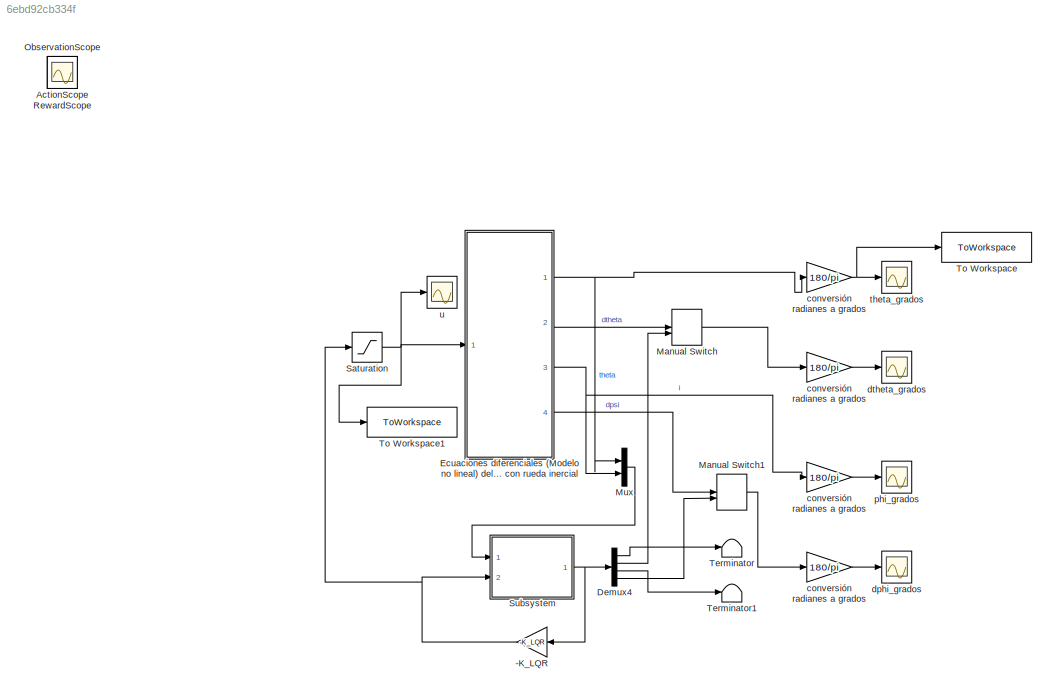
MODEL slx_6ebd92cb334f
KIND model
CONFIG AbsTol = auto
CONFIG EnableMultiTasking = off
CONFIG FixedStep = 0.01
CONFIG MaxStep = auto
CONFIG MinStep = auto
CONFIG RelTol = 1e-3
CONFIG SampleTimeConstraint = Unconstrained
CONFIG SolverName = VariableStepAuto
CONFIG StartTime = 0.0
CONFIG StopTime = 5
WORKSPACE source: MATLAB code (in-file)
WORKSPACE mCart = 1
WORKSPACE mPend = 1
WORKSPACE g = 9.81
WORKSPACE L = 0.5
WORKSPACE theta0 = 180
WORKSPACE Kd = 10
BLOCK [Gain] -K_LQR
  Gain = -K_LQR
  Multiplication = Matrix(K*u)
BLOCK [Scope] ActionScope
  Floating = off
  IOType = viewer
  NumInputPorts = 1
  Ports = []
  ScopeSpecificationString = Simulink.scopes.TimeScopeBlockCfg('CurrentConfiguration', extmgr.ConfigurationSet(extmgr.Configuration('Core','General UI',true),extmgr.Configuration('Core','Source UI',true),extmgr.Configuration('Sources','WiredSimulink',true,'DataLoggingVariableName','ScopeData1'),extmgr.Configuration('Visuals','Time Domain',true,'SerializedDisplays',{struct('MinYLimReal','-16','MaxYLimReal','16','YLabelReal',''...<+1415ch>
BLOCK [Demux] Demux4
  Ports = [1, 4]
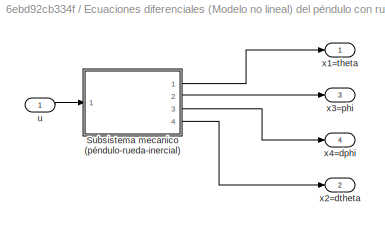
BLOCK [SubSystem] Ecuaciones diferenciales (Modelo no lineal) del péndulo con rueda inercial
  Ports = [1, 4]
  RequestExecContextInheritance = off
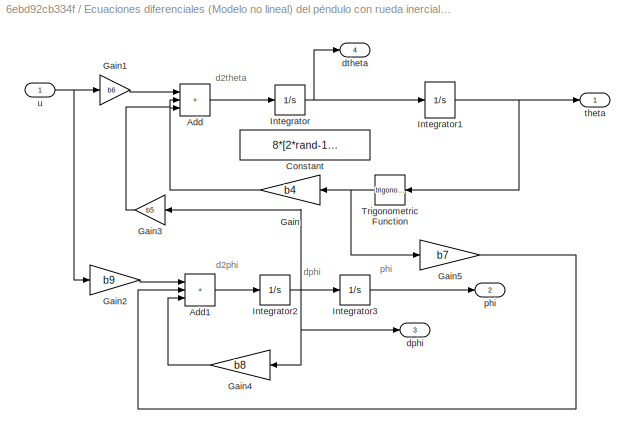
BLOCK [SubSystem] Ecuaciones diferenciales (Modelo no lineal) del péndulo con rueda inercial/Subsistema mecanico (péndulo-rueda-inercial)
  Ports = [1, 4]
  RequestExecContextInheritance = off
BLOCK [Sum] Ecuaciones diferenciales (Modelo no lineal) del péndulo con rueda inercial/Subsistema mecanico (péndulo-rueda-inercial)/Add
  IconShape = rectangular
  Inputs = +++
  Ports = [3, 1]
BLOCK [Sum] Ecuaciones diferenciales (Modelo no lineal) del péndulo con rueda inercial/Subsistema mecanico (péndulo-rueda-inercial)/Add1
  IconShape = rectangular
  Inputs = +++
  Ports = [3, 1]
BLOCK [Constant] Ecuaciones diferenciales (Modelo no lineal) del péndulo con rueda inercial/Subsistema mecanico (péndulo-rueda-inercial)/Constant
  Value = 8*[2*rand-1]*pi/180
BLOCK [Gain] Ecuaciones diferenciales (Modelo no lineal) del péndulo con rueda inercial/Subsistema mecanico (péndulo-rueda-inercial)/Gain
  Gain = b4
BLOCK [Gain] Ecuaciones diferenciales (Modelo no lineal) del péndulo con rueda inercial/Subsistema mecanico (péndulo-rueda-inercial)/Gain1
  Gain = b6
BLOCK [Gain] Ecuaciones diferenciales (Modelo no lineal) del péndulo con rueda inercial/Subsistema mecanico (péndulo-rueda-inercial)/Gain2
  Gain = b9
BLOCK [Gain] Ecuaciones diferenciales (Modelo no lineal) del péndulo con rueda inercial/Subsistema mecanico (péndulo-rueda-inercial)/Gain3
  Gain = b5
BLOCK [Gain] Ecuaciones diferenciales (Modelo no lineal) del péndulo con rueda inercial/Subsistema mecanico (péndulo-rueda-inercial)/Gain4
  Gain = b8
BLOCK [Gain] Ecuaciones diferenciales (Modelo no lineal) del péndulo con rueda inercial/Subsistema mecanico (péndulo-rueda-inercial)/Gain5
  Gain = b7
BLOCK [Integrator] Ecuaciones diferenciales (Modelo no lineal) del péndulo con rueda inercial/Subsistema mecanico (péndulo-rueda-inercial)/Integrator
  Ports = [1, 1]
BLOCK [Integrator] Ecuaciones diferenciales (Modelo no lineal) del péndulo con rueda inercial/Subsistema mecanico (péndulo-rueda-inercial)/Integrator1
  InitialCondition = 6*pi/180
  Ports = [1, 1]
BLOCK [Integrator] Ecuaciones diferenciales (Modelo no lineal) del péndulo con rueda inercial/Subsistema mecanico (péndulo-rueda-inercial)/Integrator2
  Ports = [1, 1]
BLOCK [Integrator] Ecuaciones diferenciales (Modelo no lineal) del péndulo con rueda inercial/Subsistema mecanico (péndulo-rueda-inercial)/Integrator3
  Ports = [1, 1]
BLOCK [Trigonometry] Ecuaciones diferenciales (Modelo no lineal) del péndulo con rueda inercial/Subsistema mecanico (péndulo-rueda-inercial)/Trigonometric Function
  Ports = [1, 1]
BLOCK [Outport] Ecuaciones diferenciales (Modelo no lineal) del péndulo con rueda inercial/Subsistema mecanico (péndulo-rueda-inercial)/dphi
  Port = 3
BLOCK [Outport] Ecuaciones diferenciales (Modelo no lineal) del péndulo con rueda inercial/Subsistema mecanico (péndulo-rueda-inercial)/dtheta
  Port = 4
BLOCK [Outport] Ecuaciones diferenciales (Modelo no lineal) del péndulo con rueda inercial/Subsistema mecanico (péndulo-rueda-inercial)/phi
  Port = 2
BLOCK [Outport] Ecuaciones diferenciales (Modelo no lineal) del péndulo con rueda inercial/Subsistema mecanico (péndulo-rueda-inercial)/theta
BLOCK [Inport] Ecuaciones diferenciales (Modelo no lineal) del péndulo con rueda inercial/Subsistema mecanico (péndulo-rueda-inercial)/u
BLOCK [Inport] Ecuaciones diferenciales (Modelo no lineal) del péndulo con rueda inercial/u
BLOCK [Outport] Ecuaciones diferenciales (Modelo no lineal) del péndulo con rueda inercial/x1=theta
BLOCK [Outport] Ecuaciones diferenciales (Modelo no lineal) del péndulo con rueda inercial/x2=dtheta
  Port = 2
BLOCK [Outport] Ecuaciones diferenciales (Modelo no lineal) del péndulo con rueda inercial/x3=phi
  Port = 3
BLOCK [Outport] Ecuaciones diferenciales (Modelo no lineal) del péndulo con rueda inercial/x4=dphi
  Port = 4
BLOCK [ManualSwitch] Manual Switch
BLOCK [ManualSwitch] Manual Switch1
BLOCK [Mux] Mux
  DisplayOption = bar
  Inputs = 2
  Ports = [2, 1]
BLOCK [Scope] ObservationScope
  Floating = off
  IOType = viewer
  NumInputPorts = 1
  Ports = []
  ScopeSpecificationString = Simulink.scopes.TimeScopeBlockCfg('CurrentConfiguration', extmgr.ConfigurationSet(extmgr.Configuration('Core','General UI',true),extmgr.Configuration('Core','Source UI',true),extmgr.Configuration('Sources','WiredSimulink',true),extmgr.Configuration('Visuals','Time Domain',true,'SerializedDisplays',{struct('MinYLimReal','-0.2486','MaxYLimReal','0.02762','YLabelReal','','MinYLimMag','0.00000','MaxYL...<+3376ch>
BLOCK [Scope] RewardScope
  Floating = off
  IOType = viewer
  NumInputPorts = 1
  Ports = []
  ScopeSpecificationString = Simulink.scopes.TimeScopeBlockCfg('CurrentConfiguration', extmgr.ConfigurationSet(extmgr.Configuration('Core','General UI',true),extmgr.Configuration('Core','Source UI',true),extmgr.Configuration('Sources','WiredSimulink',true,'DataLoggingVariableName','ScopeData2'),extmgr.Configuration('Visuals','Time Domain',true,'SerializedDisplays',{struct('MinYLimReal','-0.70946','MaxYLimReal','-0.42421','YLa...<+1394ch>
BLOCK [Saturate] Saturation
  LowerLimit = -12
  UpperLimit = 12
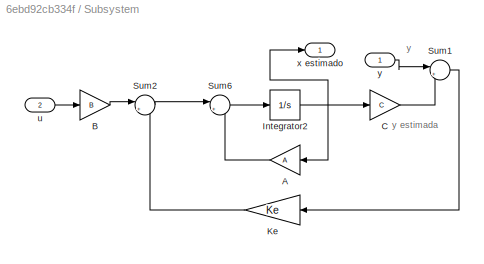
BLOCK [SubSystem] Subsystem
  Ports = [2, 1]
  RequestExecContextInheritance = off
BLOCK [Gain] Subsystem/A
  Gain = A
  Multiplication = Matrix(K*u)
BLOCK [Gain] Subsystem/B
  Gain = B
  Multiplication = Matrix(K*u)
BLOCK [Gain] Subsystem/C
  Gain = C
  Multiplication = Matrix(K*u)
BLOCK [Integrator] Subsystem/Integrator2
  Ports = [1, 1]
BLOCK [Gain] Subsystem/Ke
  Gain = Ke
  Multiplication = Matrix(K*u)
BLOCK [Sum] Subsystem/Sum1
  Inputs = |+-
  NameLocation = top
  Ports = [2, 1]
BLOCK [Sum] Subsystem/Sum2
  Inputs = |++
  Ports = [2, 1]
BLOCK [Sum] Subsystem/Sum6
  Inputs = |++
  Ports = [2, 1]
BLOCK [Inport] Subsystem/u
  Port = 2
BLOCK [Outport] Subsystem/x estimado
BLOCK [Inport] Subsystem/y
BLOCK [Terminator] Terminator
BLOCK [Terminator] Terminator1
BLOCK [ToWorkspace] To Workspace
  FixptAsFi = on
  MaxDataPoints = inf
  Ports = [1]
  SampleTime = 0.01
  Save2DSignal = 2-D array (concatenate along first dimension)
  VariableName = theta_lqr
BLOCK [ToWorkspace] To Workspace1
  FixptAsFi = on
  MaxDataPoints = inf
  Ports = [1]
  SampleTime = 0.01
  Save2DSignal = 2-D array (concatenate along first dimension)
  VariableName = u_lqr
BLOCK [Gain] conversión radianes a grados
  Gain = 180/pi
BLOCK [Gain] conversión radianes a grados 
  Gain = 180/pi
BLOCK [Gain] conversión radianes a grados  
  Gain = 180/pi
BLOCK [Gain] conversión radianes a grados   
  Gain = 180/pi
BLOCK [Scope] dphi_grados
  Floating = off
  NumInputPorts = 1
  Ports = [1]
  ScopeSpecificationString = Simulink.scopes.TimeScopeBlockCfg('CurrentConfiguration', extmgr.ConfigurationSet(extmgr.Configuration('Core','General UI',true),extmgr.Configuration('Core','Source UI',true),extmgr.Configuration('Sources','WiredSimulink',true,'DataLoggingVariableName','ScopeData2'),extmgr.Configuration('Visuals','Time Domain',true,'SerializedDisplays',{struct('MinYLimReal','-230.56866','MaxYLimReal','278.47078','...<+1461ch>
BLOCK [Scope] dtheta_grados
  Floating = off
  NumInputPorts = 1
  Ports = [1]
  ScopeSpecificationString = Simulink.scopes.TimeScopeBlockCfg('CurrentConfiguration', extmgr.ConfigurationSet(extmgr.Configuration('Core','General UI',true),extmgr.Configuration('Core','Source UI',true),extmgr.Configuration('Sources','WiredSimulink',true,'DataLoggingVariableName','ScopeData1'),extmgr.Configuration('Visuals','Time Domain',true,'SerializedDisplays',{struct('MinYLimReal','-1.00000','MaxYLimReal','1.00000','YLab...<+1460ch>
BLOCK [Scope] phi_grados
  Floating = off
  NumInputPorts = 1
  Ports = [1]
  ScopeSpecificationString = Simulink.scopes.TimeScopeBlockCfg('CurrentConfiguration', extmgr.ConfigurationSet(extmgr.Configuration('Core','General UI',true),extmgr.Configuration('Core','Source UI',true),extmgr.Configuration('Sources','WiredSimulink',true,'DataLoggingVariableName','ScopeData3'),extmgr.Configuration('Visuals','Time Domain',true,'SerializedDisplays',{struct('MinYLimReal','-75.67877','MaxYLimReal','126.16693','Y...<+1469ch>
BLOCK [Scope] theta_grados
  Floating = off
  NumInputPorts = 1
  Ports = [1]
  ScopeSpecificationString = Simulink.scopes.TimeScopeBlockCfg('CurrentConfiguration', extmgr.ConfigurationSet(extmgr.Configuration('Core','General UI',true),extmgr.Configuration('Core','Source UI',true),extmgr.Configuration('Sources','WiredSimulink',true,'DataLoggingVariableName','ScopeData4'),extmgr.Configuration('Visuals','Time Domain',true,'SerializedDisplays',{struct('MinYLimReal','-4.72657','MaxYLimReal','2.53909','YLab...<+1458ch>
BLOCK [Scope] u
  Floating = off
  NumInputPorts = 1
  Ports = [1]
  ScopeSpecificationString = Simulink.scopes.TimeScopeBlockCfg('CurrentConfiguration', extmgr.ConfigurationSet(extmgr.Configuration('Core','General UI',true),extmgr.Configuration('Core','Source UI',true),extmgr.Configuration('Sources','WiredSimulink',true,'DataLoggingVariableName','ScopeData5'),extmgr.Configuration('Visuals','Time Domain',true,'SerializedDisplays',{struct('MinYLimReal','-14.55155','MaxYLimReal','10.96393','YL...<+1446ch>
ANNOTATION Ecuaciones diferenciales (Modelo no lineal) del péndulo con rueda inercial/Subsistema mecanico (péndulo-rueda-inercial): d2phi
ANNOTATION Ecuaciones diferenciales (Modelo no lineal) del péndulo con rueda inercial/Subsistema mecanico (péndulo-rueda-inercial): d2theta
ANNOTATION Ecuaciones diferenciales (Modelo no lineal) del péndulo con rueda inercial/Subsistema mecanico (péndulo-rueda-inercial): dphi
ANNOTATION Ecuaciones diferenciales (Modelo no lineal) del péndulo con rueda inercial/Subsistema mecanico (péndulo-rueda-inercial): phi
ANNOTATION Subsystem: y
ANNOTATION Subsystem: y estimada
NET -K_LQR:1 -> Saturation:1, Subsystem:2
LINE Demux4:1 -> Terminator:1
LINE Demux4:2 -> Manual Switch:2
LINE Demux4:3 -> Terminator1:1
LINE Demux4:4 -> Manual Switch1:2
LINE Ecuaciones diferenciales (Modelo no lineal) del péndulo con rueda inercial/Subsistema mecanico (péndulo-rueda-inercial)/Add1:1 -> Ecuaciones diferenciales (Modelo no lineal) del péndulo con rueda inercial/Subsistema mecanico (péndulo-rueda-inercial)/Integrator2:1
LINE Ecuaciones diferenciales (Modelo no lineal) del péndulo con rueda inercial/Subsistema mecanico (péndulo-rueda-inercial)/Add:1 -> Ecuaciones diferenciales (Modelo no lineal) del péndulo con rueda inercial/Subsistema mecanico (péndulo-rueda-inercial)/Integrator:1
LINE Ecuaciones diferenciales (Modelo no lineal) del péndulo con rueda inercial/Subsistema mecanico (péndulo-rueda-inercial)/Gain1:1 -> Ecuaciones diferenciales (Modelo no lineal) del péndulo con rueda inercial/Subsistema mecanico (péndulo-rueda-inercial)/Add:1
LINE Ecuaciones diferenciales (Modelo no lineal) del péndulo con rueda inercial/Subsistema mecanico (péndulo-rueda-inercial)/Gain2:1 -> Ecuaciones diferenciales (Modelo no lineal) del péndulo con rueda inercial/Subsistema mecanico (péndulo-rueda-inercial)/Add1:1
LINE Ecuaciones diferenciales (Modelo no lineal) del péndulo con rueda inercial/Subsistema mecanico (péndulo-rueda-inercial)/Gain3:1 -> Ecuaciones diferenciales (Modelo no lineal) del péndulo con rueda inercial/Subsistema mecanico (péndulo-rueda-inercial)/Add:2
LINE Ecuaciones diferenciales (Modelo no lineal) del péndulo con rueda inercial/Subsistema mecanico (péndulo-rueda-inercial)/Gain4:1 -> Ecuaciones diferenciales (Modelo no lineal) del péndulo con rueda inercial/Subsistema mecanico (péndulo-rueda-inercial)/Add1:3
LINE Ecuaciones diferenciales (Modelo no lineal) del péndulo con rueda inercial/Subsistema mecanico (péndulo-rueda-inercial)/Gain5:1 -> Ecuaciones diferenciales (Modelo no lineal) del péndulo con rueda inercial/Subsistema mecanico (péndulo-rueda-inercial)/Add1:2
LINE Ecuaciones diferenciales (Modelo no lineal) del péndulo con rueda inercial/Subsistema mecanico (péndulo-rueda-inercial)/Gain:1 -> Ecuaciones diferenciales (Modelo no lineal) del péndulo con rueda inercial/Subsistema mecanico (péndulo-rueda-inercial)/Add:3
NET Ecuaciones diferenciales (Modelo no lineal) del péndulo con rueda inercial/Subsistema mecanico (péndulo-rueda-inercial)/Integrator1:1 -> Ecuaciones diferenciales (Modelo no lineal) del péndulo con rueda inercial/Subsistema mecanico (péndulo-rueda-inercial)/Trigonometric Function:1, Ecuaciones diferenciales (Modelo no lineal) del péndulo con rueda inercial/Subsistema mecanico (péndulo-rueda-inercial)/theta:1
NET Ecuaciones diferenciales (Modelo no lineal) del péndulo con rueda inercial/Subsistema mecanico (péndulo-rueda-inercial)/Integrator2:1 -> Ecuaciones diferenciales (Modelo no lineal) del péndulo con rueda inercial/Subsistema mecanico (péndulo-rueda-inercial)/Gain3:1, Ecuaciones diferenciales (Modelo no lineal) del péndulo con rueda inercial/Subsistema mecanico (péndulo-rueda-inercial)/Gain4:1, Ecuaciones diferenciales (Modelo no lineal) del péndulo con rueda inercial/Subsistema mecanico (péndulo-rueda-inercial)/Integrator3:1, Ecuaciones diferenciales (Modelo no lineal) del péndulo con rueda inercial/Subsistema mecanico (péndulo-rueda-inercial)/dphi:1
LINE Ecuaciones diferenciales (Modelo no lineal) del péndulo con rueda inercial/Subsistema mecanico (péndulo-rueda-inercial)/Integrator3:1 -> Ecuaciones diferenciales (Modelo no lineal) del péndulo con rueda inercial/Subsistema mecanico (péndulo-rueda-inercial)/phi:1
NET Ecuaciones diferenciales (Modelo no lineal) del péndulo con rueda inercial/Subsistema mecanico (péndulo-rueda-inercial)/Integrator:1 -> Ecuaciones diferenciales (Modelo no lineal) del péndulo con rueda inercial/Subsistema mecanico (péndulo-rueda-inercial)/Integrator1:1, Ecuaciones diferenciales (Modelo no lineal) del péndulo con rueda inercial/Subsistema mecanico (péndulo-rueda-inercial)/dtheta:1
NET Ecuaciones diferenciales (Modelo no lineal) del péndulo con rueda inercial/Subsistema mecanico (péndulo-rueda-inercial)/Trigonometric Function:1 -> Ecuaciones diferenciales (Modelo no lineal) del péndulo con rueda inercial/Subsistema mecanico (péndulo-rueda-inercial)/Gain5:1, Ecuaciones diferenciales (Modelo no lineal) del péndulo con rueda inercial/Subsistema mecanico (péndulo-rueda-inercial)/Gain:1
NET Ecuaciones diferenciales (Modelo no lineal) del péndulo con rueda inercial/Subsistema mecanico (péndulo-rueda-inercial)/u:1 -> Ecuaciones diferenciales (Modelo no lineal) del péndulo con rueda inercial/Subsistema mecanico (péndulo-rueda-inercial)/Gain1:1, Ecuaciones diferenciales (Modelo no lineal) del péndulo con rueda inercial/Subsistema mecanico (péndulo-rueda-inercial)/Gain2:1
LINE Ecuaciones diferenciales (Modelo no lineal) del péndulo con rueda inercial/Subsistema mecanico (péndulo-rueda-inercial):1 -> Ecuaciones diferenciales (Modelo no lineal) del péndulo con rueda inercial/x1=theta:1
LINE Ecuaciones diferenciales (Modelo no lineal) del péndulo con rueda inercial/Subsistema mecanico (péndulo-rueda-inercial):2 -> Ecuaciones diferenciales (Modelo no lineal) del péndulo con rueda inercial/x3=phi:1
LINE Ecuaciones diferenciales (Modelo no lineal) del péndulo con rueda inercial/Subsistema mecanico (péndulo-rueda-inercial):3 -> Ecuaciones diferenciales (Modelo no lineal) del péndulo con rueda inercial/x4=dphi:1
LINE Ecuaciones diferenciales (Modelo no lineal) del péndulo con rueda inercial/Subsistema mecanico (péndulo-rueda-inercial):4 -> Ecuaciones diferenciales (Modelo no lineal) del péndulo con rueda inercial/x2=dtheta:1
LINE Ecuaciones diferenciales (Modelo no lineal) del péndulo con rueda inercial/u:1 -> Ecuaciones diferenciales (Modelo no lineal) del péndulo con rueda inercial/Subsistema mecanico (péndulo-rueda-inercial):1
NET Ecuaciones diferenciales (Modelo no lineal) del péndulo con rueda inercial:1 -> Mux:1, conversión radianes a grados:1
LINE Ecuaciones diferenciales (Modelo no lineal) del péndulo con rueda inercial:2 -> Manual Switch:1
NET Ecuaciones diferenciales (Modelo no lineal) del péndulo con rueda inercial:3 -> Mux:2, conversión radianes a grados :1
LINE Ecuaciones diferenciales (Modelo no lineal) del péndulo con rueda inercial:4 -> Manual Switch1:1
LINE Manual Switch1:1 -> conversión radianes a grados   :1
LINE Manual Switch:1 -> conversión radianes a grados  :1
LINE Mux:1 -> Subsystem:1
NET Saturation:1 -> Ecuaciones diferenciales (Modelo no lineal) del péndulo con rueda inercial:1, To Workspace1:1, u:1
LINE Subsystem/A:1 -> Subsystem/Sum6:2
LINE Subsystem/B:1 -> Subsystem/Sum2:1
LINE Subsystem/C:1 -> Subsystem/Sum1:2
NET Subsystem/Integrator2:1 -> Subsystem/A:1, Subsystem/C:1, Subsystem/x estimado:1
LINE Subsystem/Ke:1 -> Subsystem/Sum2:2
LINE Subsystem/Sum1:1 -> Subsystem/Ke:1
LINE Subsystem/Sum2:1 -> Subsystem/Sum6:1
LINE Subsystem/Sum6:1 -> Subsystem/Integrator2:1
LINE Subsystem/u:1 -> Subsystem/B:1
LINE Subsystem/y:1 -> Subsystem/Sum1:1
NET Subsystem:1 -> -K_LQR:1, Demux4:1
LINE conversión radianes a grados   :1 -> dphi_grados:1
LINE conversión radianes a grados  :1 -> dtheta_grados:1
LINE conversión radianes a grados :1 -> phi_grados:1
NET conversión radianes a grados:1 -> To Workspace:1, theta_grados:1
note: NET lines group one-source signal fan-out (src -> all destinations, sorted); 1:1 wires keep LINE
